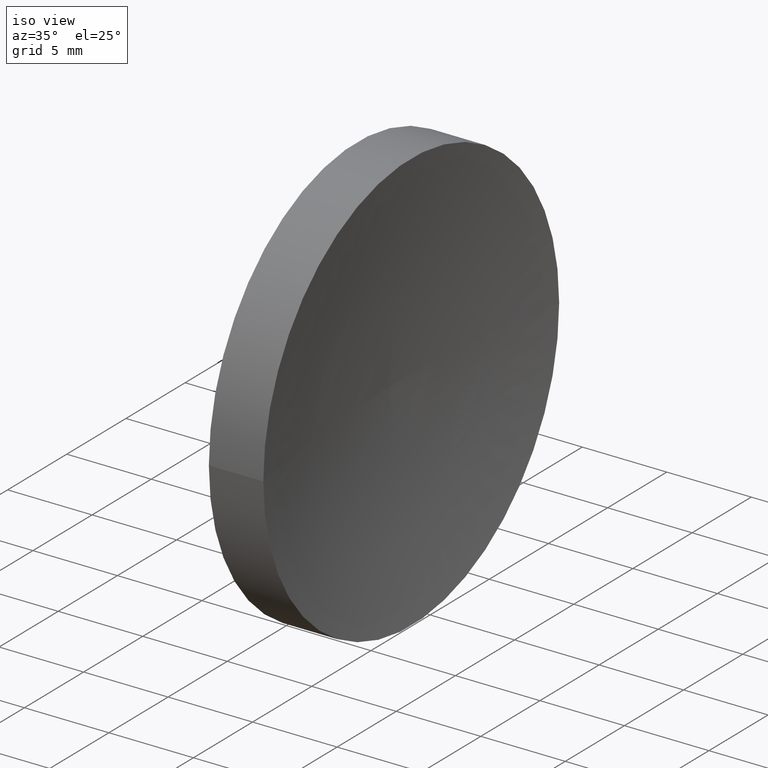
[diagram: clean part render]
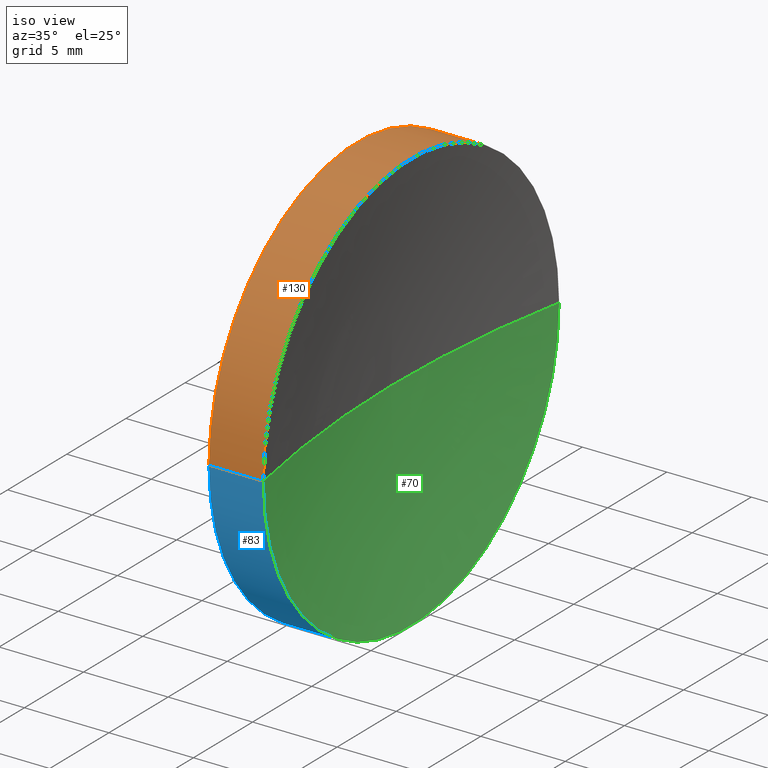
[diagram: same view with three faces highlighted in distinct colors, each labeled with its STEP entity id]
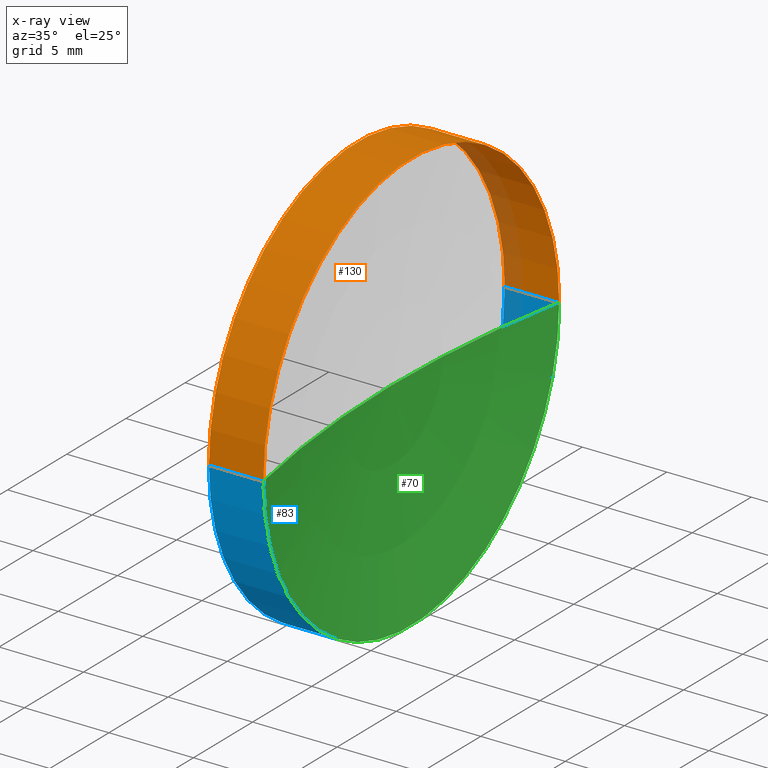
[diagram: x-ray of the same camera — body ghosted, the three highlighted faces saturated]
A machine part, iso view with three faces highlighted in distinct colors.
The next image is the same camera in x-ray (body ghosted, the three faces saturated) — at least one of them is partly hidden behind the body in this view.
Their STEP definitions:

[orange] entity #130 — the highlighted cylindrical surface (partial cylindrical patch) has radius 12.5 mm, axis along (-1, 0, -0).
#3 = DIRECTION ( 'NONE',  ( -5.551115123125784700E-016, -1.000000000000000000, 0.0000000000000000000 ) ) ;
#13 = DIRECTION ( 'NONE',  ( -5.551115123125782700E-016, -1.000000000000000000, 0.0000000000000000000 ) ) ;
#14 = CARTESIAN_POINT ( 'NONE',  ( 60.58047800621231000, 32.57872591329309800, 0.0000000000000000000 ) ) ;
#17 = DIRECTION ( 'NONE',  ( -1.000000000000000000, 4.853228644174421400E-016, -0.0000000000000000000 ) ) ;
#24 = VERTEX_POINT ( 'NONE', #141 ) ;
#27 = CARTESIAN_POINT ( 'NONE',  ( 57.35819015802110200, 20.07872591329309800, 0.0000000000000000000 ) ) ;
#30 = DIRECTION ( 'NONE',  ( -5.551115123125779700E-016, -1.000000000000000000, 0.0000000000000000000 ) ) ;
#32 = CARTESIAN_POINT ( 'NONE',  ( 55.00739462442118800, 45.07872591329309100, 1.530808498934191500E-015 ) ) ;
#38 = CYLINDRICAL_SURFACE ( 'NONE', #125, 12.50000000000000000 ) ;
#40 = VECTOR ( 'NONE', #60, 1000.000000000000000 ) ;
#46 = CARTESIAN_POINT ( 'NONE',  ( 57.35819015802111700, 45.07872591329309100, 1.530808498934191900E-015 ) ) ;
#51 = AXIS2_PLACEMENT_3D ( 'NONE', #14, #17, #30 ) ;
#55 = VERTEX_POINT ( 'NONE', #27 ) ;
#60 = DIRECTION ( 'NONE',  ( -1.000000000000000000, 4.853228644174421400E-016, -0.0000000000000000000 ) ) ;
#65 = CARTESIAN_POINT ( 'NONE',  ( 57.35819015802111000, 32.57872591329309800, 0.0000000000000000000 ) ) ;
#66 = AXIS2_PLACEMENT_3D ( 'NONE', #65, #143, #3 ) ;
#68 = ORIENTED_EDGE ( 'NONE', *, *, #92, .F. ) ;
#71 = EDGE_LOOP ( 'NONE', ( #94, #95, #68, #82 ) ) ;
#78 = CARTESIAN_POINT ( 'NONE',  ( 55.00739462442117400, 20.07872591329309500, 0.0000000000000000000 ) ) ;
#82 = ORIENTED_EDGE ( 'NONE', *, *, #114, .F. ) ;
#85 = CARTESIAN_POINT ( 'NONE',  ( 55.00739462442118100, 32.57872591329309800, 0.0000000000000000000 ) ) ;
#89 = CARTESIAN_POINT ( 'NONE',  ( 60.58047800621231700, 45.07872591329309100, 1.530808498934191300E-015 ) ) ;
#92 = EDGE_CURVE ( 'NONE', #55, #108, #138, .T. ) ;
#93 = VECTOR ( 'NONE', #155, 1000.000000000000000 ) ;
#94 = ORIENTED_EDGE ( 'NONE', *, *, #162, .T. ) ;
#95 = ORIENTED_EDGE ( 'NONE', *, *, #120, .T. ) ;
#98 = DIRECTION ( 'NONE',  ( -1.000000000000000000, 4.853228644174421400E-016, -0.0000000000000000000 ) ) ;
#108 = VERTEX_POINT ( 'NONE', #46 ) ;
#114 = EDGE_CURVE ( 'NONE', #24, #55, #161, .T. ) ;
#120 = EDGE_CURVE ( 'NONE', #151, #108, #126, .T. ) ;
#125 = AXIS2_PLACEMENT_3D ( 'NONE', #85, #98, #13 ) ;
#126 = LINE ( 'NONE', #32, #93 ) ;
#130 = ADVANCED_FACE ( 'NONE', ( #139 ), #38, .T. ) ;
#136 = CIRCLE ( 'NONE', #51, 12.50000000000000700 ) ;
#138 = CIRCLE ( 'NONE', #66, 12.49999999999999600 ) ;
#139 = FACE_OUTER_BOUND ( 'NONE', #71, .T. ) ;
#141 = CARTESIAN_POINT ( 'NONE',  ( 60.58047800621231000, 20.07872591329309100, 0.0000000000000000000 ) ) ;
#143 = DIRECTION ( 'NONE',  ( -1.000000000000000000, 4.853228644174421400E-016, -0.0000000000000000000 ) ) ;
#151 = VERTEX_POINT ( 'NONE', #89 ) ;
#155 = DIRECTION ( 'NONE',  ( -1.000000000000000000, 4.853228644174421400E-016, -0.0000000000000000000 ) ) ;
#161 = LINE ( 'NONE', #78, #40 ) ;
#162 = EDGE_CURVE ( 'NONE', #24, #151, #136, .T. ) ;

[blue] entity #83 — the highlighted cylindrical surface (partial cylindrical patch) has radius 12.5 mm, axis along (-1, 0, -0).
#2 = AXIS2_PLACEMENT_3D ( 'NONE', #97, #69, #58 ) ;
#9 = EDGE_CURVE ( 'NONE', #151, #24, #90, .T. ) ;
#24 = VERTEX_POINT ( 'NONE', #141 ) ;
#26 = EDGE_CURVE ( 'NONE', #108, #55, #145, .T. ) ;
#27 = CARTESIAN_POINT ( 'NONE',  ( 57.35819015802110200, 20.07872591329309800, 0.0000000000000000000 ) ) ;
#32 = CARTESIAN_POINT ( 'NONE',  ( 55.00739462442118800, 45.07872591329309100, 1.530808498934191500E-015 ) ) ;
#40 = VECTOR ( 'NONE', #60, 1000.000000000000000 ) ;
#43 = FACE_OUTER_BOUND ( 'NONE', #124, .T. ) ;
#44 = DIRECTION ( 'NONE',  ( -5.551115123125784700E-016, -1.000000000000000000, 0.0000000000000000000 ) ) ;
#46 = CARTESIAN_POINT ( 'NONE',  ( 57.35819015802111700, 45.07872591329309100, 1.530808498934191900E-015 ) ) ;
#55 = VERTEX_POINT ( 'NONE', #27 ) ;
#56 = CARTESIAN_POINT ( 'NONE',  ( 57.35819015802111000, 32.57872591329309800, 0.0000000000000000000 ) ) ;
#57 = DIRECTION ( 'NONE',  ( -1.000000000000000000, 4.853228644174421400E-016, -0.0000000000000000000 ) ) ;
#58 = DIRECTION ( 'NONE',  ( -5.551115123125779700E-016, -1.000000000000000000, 0.0000000000000000000 ) ) ;
#60 = DIRECTION ( 'NONE',  ( -1.000000000000000000, 4.853228644174421400E-016, -0.0000000000000000000 ) ) ;
#69 = DIRECTION ( 'NONE',  ( -1.000000000000000000, 4.853228644174421400E-016, -0.0000000000000000000 ) ) ;
#78 = CARTESIAN_POINT ( 'NONE',  ( 55.00739462442117400, 20.07872591329309500, 0.0000000000000000000 ) ) ;
#83 = ADVANCED_FACE ( 'NONE', ( #43 ), #102, .T. ) ;
#84 = DIRECTION ( 'NONE',  ( -1.000000000000000000, 4.853228644174421400E-016, -0.0000000000000000000 ) ) ;
#89 = CARTESIAN_POINT ( 'NONE',  ( 60.58047800621231700, 45.07872591329309100, 1.530808498934191300E-015 ) ) ;
#90 = CIRCLE ( 'NONE', #2, 12.50000000000000700 ) ;
#91 = ORIENTED_EDGE ( 'NONE', *, *, #114, .T. ) ;
#93 = VECTOR ( 'NONE', #155, 1000.000000000000000 ) ;
#97 = CARTESIAN_POINT ( 'NONE',  ( 60.58047800621231000, 32.57872591329309800, 0.0000000000000000000 ) ) ;
#102 = CYLINDRICAL_SURFACE ( 'NONE', #150, 12.50000000000000000 ) ;
#108 = VERTEX_POINT ( 'NONE', #46 ) ;
#109 = ORIENTED_EDGE ( 'NONE', *, *, #9, .T. ) ;
#111 = AXIS2_PLACEMENT_3D ( 'NONE', #56, #84, #44 ) ;
#112 = ORIENTED_EDGE ( 'NONE', *, *, #26, .F. ) ;
#114 = EDGE_CURVE ( 'NONE', #24, #55, #161, .T. ) ;
#117 = ORIENTED_EDGE ( 'NONE', *, *, #120, .F. ) ;
#120 = EDGE_CURVE ( 'NONE', #151, #108, #126, .T. ) ;
#121 = DIRECTION ( 'NONE',  ( -5.551115123125782700E-016, -1.000000000000000000, 0.0000000000000000000 ) ) ;
#124 = EDGE_LOOP ( 'NONE', ( #117, #109, #91, #112 ) ) ;
#126 = LINE ( 'NONE', #32, #93 ) ;
#128 = CARTESIAN_POINT ( 'NONE',  ( 55.00739462442118100, 32.57872591329309800, 0.0000000000000000000 ) ) ;
#141 = CARTESIAN_POINT ( 'NONE',  ( 60.58047800621231000, 20.07872591329309100, 0.0000000000000000000 ) ) ;
#145 = CIRCLE ( 'NONE', #111, 12.49999999999999600 ) ;
#150 = AXIS2_PLACEMENT_3D ( 'NONE', #128, #57, #121 ) ;
#151 = VERTEX_POINT ( 'NONE', #89 ) ;
#155 = DIRECTION ( 'NONE',  ( -1.000000000000000000, 4.853228644174421400E-016, -0.0000000000000000000 ) ) ;
#161 = LINE ( 'NONE', #78, #40 ) ;

[green] entity #70 — the highlighted toroidal blend (fillet) surface has major radius 0.0021 mm and minor (blend) radius 64.55 mm.
#2 = AXIS2_PLACEMENT_3D ( 'NONE', #97, #69, #58 ) ;
#5 = FACE_OUTER_BOUND ( 'NONE', #15, .T. ) ;
#9 = EDGE_CURVE ( 'NONE', #151, #24, #90, .T. ) ;
#10 = CIRCLE ( 'NONE', #39, 64.54999999999998300 ) ;
#12 = CARTESIAN_POINT ( 'NONE',  ( 123.9081901580211100, 32.58086067571049700, 0.0000000000000000000 ) ) ;
#15 = EDGE_LOOP ( 'NONE', ( #62, #22, #142 ) ) ;
#22 = ORIENTED_EDGE ( 'NONE', *, *, #23, .T. ) ;
#23 = EDGE_CURVE ( 'NONE', #151, #99, #110, .T. ) ;
#24 = VERTEX_POINT ( 'NONE', #141 ) ;
#39 = AXIS2_PLACEMENT_3D ( 'NONE', #12, #72, #140 ) ;
#41 = EDGE_CURVE ( 'NONE', #24, #99, #10, .T. ) ;
#42 = CARTESIAN_POINT ( 'NONE',  ( 123.9081901580211100, 32.57659115087562900, -2.614329961454108600E-019 ) ) ;
#53 = AXIS2_PLACEMENT_3D ( 'NONE', #42, #104, #115 ) ;
#58 = DIRECTION ( 'NONE',  ( -5.551115123125779700E-016, -1.000000000000000000, 0.0000000000000000000 ) ) ;
#59 = CARTESIAN_POINT ( 'NONE',  ( 123.9081901580211100, 32.57872591329306300, 0.0000000000000000000 ) ) ;
#62 = ORIENTED_EDGE ( 'NONE', *, *, #9, .F. ) ;
#69 = DIRECTION ( 'NONE',  ( -1.000000000000000000, 4.853228644174421400E-016, -0.0000000000000000000 ) ) ;
#70 = ADVANCED_FACE ( 'NONE', ( #5 ), #81, .F. ) ;
#72 = DIRECTION ( 'NONE',  ( 0.0000000000000000000, -0.0000000000000000000, -1.000000000000000000 ) ) ;
#74 = DIRECTION ( 'NONE',  ( -1.000000000000000000, 4.853228644174421400E-016, -0.0000000000000000000 ) ) ;
#81 = TOROIDAL_SURFACE ( 'NONE', #137, -0.002134762417436853900, 64.54999999999998300 ) ;
#89 = CARTESIAN_POINT ( 'NONE',  ( 60.58047800621231700, 45.07872591329309100, 1.530808498934191300E-015 ) ) ;
#90 = CIRCLE ( 'NONE', #2, 12.50000000000000700 ) ;
#97 = CARTESIAN_POINT ( 'NONE',  ( 60.58047800621231000, 32.57872591329309800, 0.0000000000000000000 ) ) ;
#99 = VERTEX_POINT ( 'NONE', #160 ) ;
#104 = DIRECTION ( 'NONE',  ( -5.943490924618453600E-032, -1.224646799147353200E-016, 1.000000000000000000 ) ) ;
#110 = CIRCLE ( 'NONE', #53, 64.54999999999998300 ) ;
#115 = DIRECTION ( 'NONE',  ( 0.0000000000000000000, -1.000000000000000000, -1.224646799147353000E-016 ) ) ;
#137 = AXIS2_PLACEMENT_3D ( 'NONE', #59, #74, #153 ) ;
#140 = DIRECTION ( 'NONE',  ( -1.000000000000000000, 0.0000000000000000000, 0.0000000000000000000 ) ) ;
#141 = CARTESIAN_POINT ( 'NONE',  ( 60.58047800621231000, 20.07872591329309100, 0.0000000000000000000 ) ) ;
#142 = ORIENTED_EDGE ( 'NONE', *, *, #41, .F. ) ;
#151 = VERTEX_POINT ( 'NONE', #89 ) ;
#153 = DIRECTION ( 'NONE',  ( -4.853228644174421400E-016, -1.000000000000000000, 0.0000000000000000000 ) ) ;
#160 = CARTESIAN_POINT ( 'NONE',  ( 59.35819019332097200, 32.57872591329309800, 0.0000000000000000000 ) ) ;